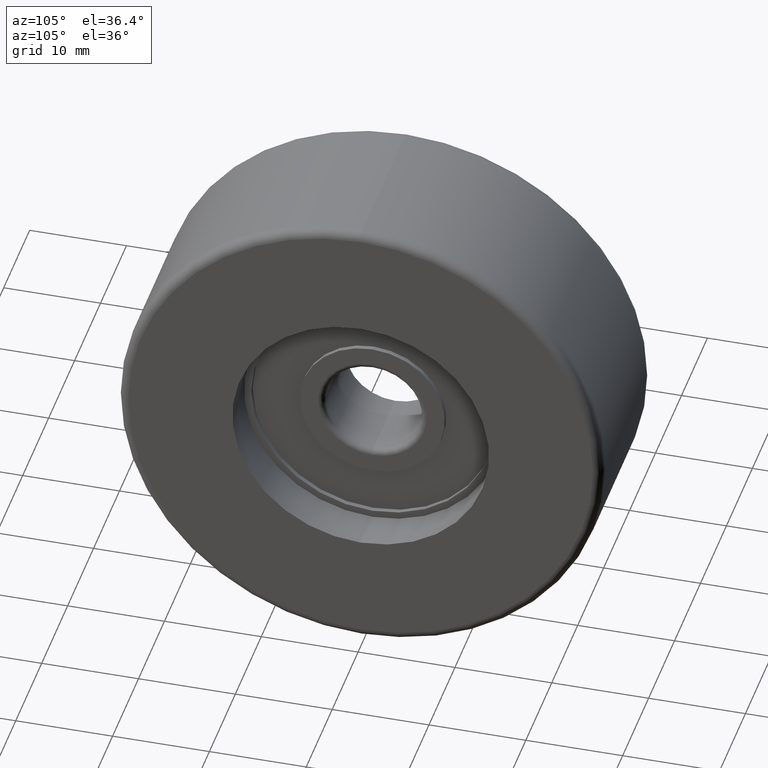
[diagram: clean part render]
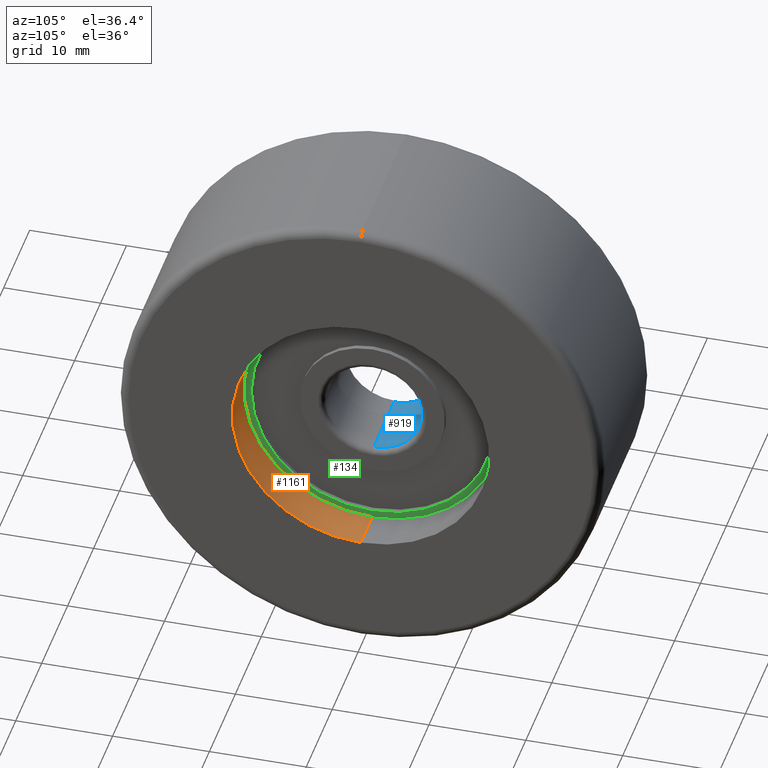
[diagram: same view with three faces highlighted in distinct colors, each labeled with its STEP entity id]
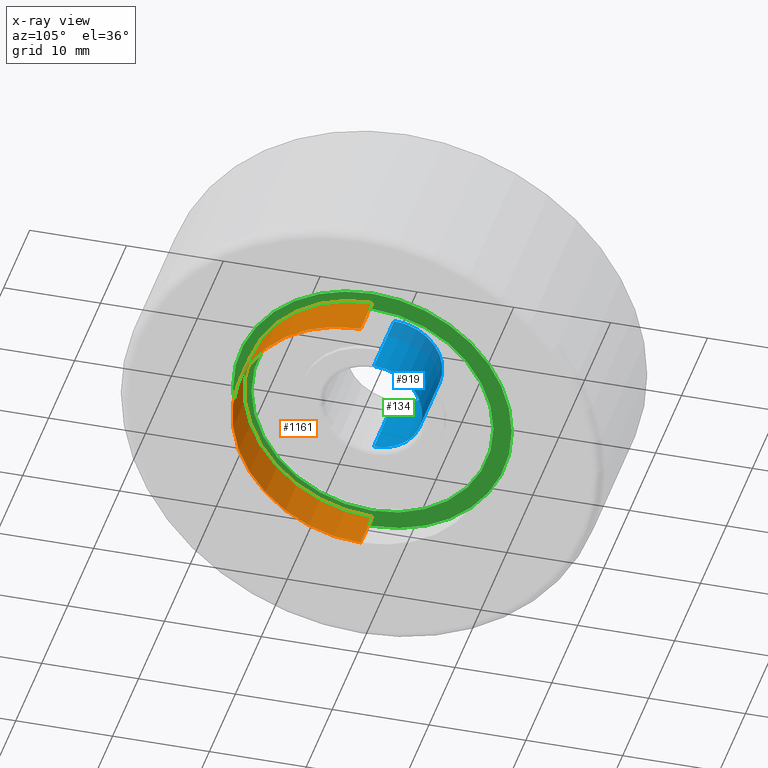
[diagram: x-ray of the same camera — body ghosted, the three highlighted faces saturated]
A machine part, auxiliary view with three faces highlighted in distinct colors.
The next image is the same camera in x-ray (body ghosted, the three faces saturated) — at least one of them is partly hidden behind the body in this view.
Their STEP definitions:

[orange] entity #1161 — the highlighted cylindrical surface (partial cylindrical patch) has radius 13.25 mm, axis along (-1, -0, -0).
#24 = LINE ( 'NONE', #541, #782 ) ;
#84 = DIRECTION ( 'NONE',  ( 0.0000000000000000000, 0.0000000000000000000, 1.000000000000000000 ) ) ;
#157 = EDGE_CURVE ( 'NONE', #693, #1368, #24, .T. ) ;
#174 = ORIENTED_EDGE ( 'NONE', *, *, #561, .F. ) ;
#182 = LINE ( 'NONE', #958, #1019 ) ;
#209 = ORIENTED_EDGE ( 'NONE', *, *, #157, .T. ) ;
#300 = DIRECTION ( 'NONE',  ( -1.000000000000000000, -0.0000000000000000000, -0.0000000000000000000 ) ) ;
#383 = ORIENTED_EDGE ( 'NONE', *, *, #415, .F. ) ;
#389 = DIRECTION ( 'NONE',  ( 0.0000000000000000000, 0.0000000000000000000, 1.000000000000000000 ) ) ;
#394 = CARTESIAN_POINT ( 'NONE',  ( 4.500000000000000000, 0.0000000000000000000, 0.0000000000000000000 ) ) ;
#415 = EDGE_CURVE ( 'NONE', #693, #1347, #1403, .T. ) ;
#450 = CARTESIAN_POINT ( 'NONE',  ( 8.999999999999998224, 0.0000000000000000000, 13.24999999999999822 ) ) ;
#485 = CIRCLE ( 'NONE', #671, 13.24999999999999822 ) ;
#510 = DIRECTION ( 'NONE',  ( -1.000000000000000000, -0.0000000000000000000, -0.0000000000000000000 ) ) ;
#520 = AXIS2_PLACEMENT_3D ( 'NONE', #1321, #767, #84 ) ;
#541 = CARTESIAN_POINT ( 'NONE',  ( -5.000000000000000000, 1.622657008870242685E-15, -13.24999999999999822 ) ) ;
#561 = EDGE_CURVE ( 'NONE', #1347, #930, #182, .T. ) ;
#564 = CARTESIAN_POINT ( 'NONE',  ( 4.500000000000000000, 1.622657008870242685E-15, -13.24999999999999822 ) ) ;
#588 = FACE_OUTER_BOUND ( 'NONE', #1115, .T. ) ;
#606 = DIRECTION ( 'NONE',  ( 0.0000000000000000000, 0.0000000000000000000, 1.000000000000000000 ) ) ;
#671 = AXIS2_PLACEMENT_3D ( 'NONE', #394, #718, #606 ) ;
#693 = VERTEX_POINT ( 'NONE', #748 ) ;
#718 = DIRECTION ( 'NONE',  ( -1.000000000000000000, -0.0000000000000000000, -0.0000000000000000000 ) ) ;
#748 = CARTESIAN_POINT ( 'NONE',  ( 8.999999999999998224, 1.622657008870242685E-15, -13.24999999999999822 ) ) ;
#754 = ORIENTED_EDGE ( 'NONE', *, *, #926, .T. ) ;
#767 = DIRECTION ( 'NONE',  ( -1.000000000000000000, -0.0000000000000000000, -0.0000000000000000000 ) ) ;
#782 = VECTOR ( 'NONE', #300, 1000.000000000000000 ) ;
#831 = DIRECTION ( 'NONE',  ( -1.000000000000000000, -0.0000000000000000000, -0.0000000000000000000 ) ) ;
#926 = EDGE_CURVE ( 'NONE', #1368, #930, #485, .T. ) ;
#930 = VERTEX_POINT ( 'NONE', #933 ) ;
#933 = CARTESIAN_POINT ( 'NONE',  ( 4.500000000000000000, 0.0000000000000000000, 13.24999999999999822 ) ) ;
#951 = AXIS2_PLACEMENT_3D ( 'NONE', #1153, #831, #389 ) ;
#958 = CARTESIAN_POINT ( 'NONE',  ( -5.000000000000000000, 0.0000000000000000000, 13.24999999999999822 ) ) ;
#1019 = VECTOR ( 'NONE', #510, 1000.000000000000000 ) ;
#1066 = CYLINDRICAL_SURFACE ( 'NONE', #520, 13.24999999999999822 ) ;
#1115 = EDGE_LOOP ( 'NONE', ( #383, #209, #754, #174 ) ) ;
#1153 = CARTESIAN_POINT ( 'NONE',  ( 8.999999999999998224, 0.0000000000000000000, 0.0000000000000000000 ) ) ;
#1161 = ADVANCED_FACE ( 'NONE', ( #588 ), #1066, .F. ) ;
#1321 = CARTESIAN_POINT ( 'NONE',  ( -5.000000000000000000, 0.0000000000000000000, 0.0000000000000000000 ) ) ;
#1347 = VERTEX_POINT ( 'NONE', #450 ) ;
#1368 = VERTEX_POINT ( 'NONE', #564 ) ;
#1403 = CIRCLE ( 'NONE', #951, 13.24999999999999822 ) ;

[blue] entity #919 — the highlighted cylindrical surface (partial cylindrical patch) has radius 5 mm, axis along (-1, -0, -0).
#42 = DIRECTION ( 'NONE',  ( 0.0000000000000000000, 0.0000000000000000000, 1.000000000000000000 ) ) ;
#111 = CIRCLE ( 'NONE', #1210, 5.000000000000000888 ) ;
#150 = CARTESIAN_POINT ( 'NONE',  ( 3.900000000000002576, 0.0000000000000000000, 5.000000000000000000 ) ) ;
#215 = AXIS2_PLACEMENT_3D ( 'NONE', #480, #1124, #42 ) ;
#220 = CARTESIAN_POINT ( 'NONE',  ( 3.900000000000002576, 0.0000000000000000000, 0.0000000000000000000 ) ) ;
#235 = CYLINDRICAL_SURFACE ( 'NONE', #215, 5.000000000000000888 ) ;
#240 = DIRECTION ( 'NONE',  ( -1.000000000000000000, -0.0000000000000000000, -0.0000000000000000000 ) ) ;
#278 = EDGE_CURVE ( 'NONE', #1014, #281, #851, .T. ) ;
#281 = VERTEX_POINT ( 'NONE', #915 ) ;
#299 = CARTESIAN_POINT ( 'NONE',  ( 3.900000000000002576, 6.490628035480971924E-16, -5.000000000000000000 ) ) ;
#346 = VECTOR ( 'NONE', #1262, 1000.000000000000000 ) ;
#427 = VERTEX_POINT ( 'NONE', #821 ) ;
#441 = DIRECTION ( 'NONE',  ( -1.000000000000000000, -0.0000000000000000000, -0.0000000000000000000 ) ) ;
#480 = CARTESIAN_POINT ( 'NONE',  ( 0.0000000000000000000, 0.0000000000000000000, 0.0000000000000000000 ) ) ;
#516 = VERTEX_POINT ( 'NONE', #299 ) ;
#543 = EDGE_LOOP ( 'NONE', ( #607, #1255, #880, #570 ) ) ;
#570 = ORIENTED_EDGE ( 'NONE', *, *, #1176, .T. ) ;
#607 = ORIENTED_EDGE ( 'NONE', *, *, #983, .F. ) ;
#664 = VECTOR ( 'NONE', #240, 1000.000000000000000 ) ;
#745 = EDGE_CURVE ( 'NONE', #1014, #516, #759, .T. ) ;
#759 = CIRCLE ( 'NONE', #1362, 5.000000000000000000 ) ;
#821 = CARTESIAN_POINT ( 'NONE',  ( -3.899999999999997247, 6.123233995736767268E-16, -5.000000000000000888 ) ) ;
#851 = LINE ( 'NONE', #922, #664 ) ;
#880 = ORIENTED_EDGE ( 'NONE', *, *, #278, .T. ) ;
#915 = CARTESIAN_POINT ( 'NONE',  ( -3.899999999999997247, 0.0000000000000000000, 5.000000000000000888 ) ) ;
#919 = ADVANCED_FACE ( 'NONE', ( #1376 ), #235, .F. ) ;
#922 = CARTESIAN_POINT ( 'NONE',  ( 0.0000000000000000000, 0.0000000000000000000, 5.000000000000000888 ) ) ;
#950 = CARTESIAN_POINT ( 'NONE',  ( 0.0000000000000000000, 6.123233995736767268E-16, -5.000000000000000888 ) ) ;
#983 = EDGE_CURVE ( 'NONE', #516, #427, #1417, .T. ) ;
#1014 = VERTEX_POINT ( 'NONE', #150 ) ;
#1100 = CARTESIAN_POINT ( 'NONE',  ( -3.899999999999997247, 0.0000000000000000000, 0.0000000000000000000 ) ) ;
#1102 = DIRECTION ( 'NONE',  ( 0.0000000000000000000, 0.0000000000000000000, 1.000000000000000000 ) ) ;
#1121 = DIRECTION ( 'NONE',  ( -1.000000000000000000, -0.0000000000000000000, -0.0000000000000000000 ) ) ;
#1124 = DIRECTION ( 'NONE',  ( -1.000000000000000000, -0.0000000000000000000, -0.0000000000000000000 ) ) ;
#1176 = EDGE_CURVE ( 'NONE', #281, #427, #111, .T. ) ;
#1210 = AXIS2_PLACEMENT_3D ( 'NONE', #1100, #441, #1212 ) ;
#1212 = DIRECTION ( 'NONE',  ( 0.0000000000000000000, 0.0000000000000000000, 1.000000000000000000 ) ) ;
#1255 = ORIENTED_EDGE ( 'NONE', *, *, #745, .F. ) ;
#1262 = DIRECTION ( 'NONE',  ( -1.000000000000000000, -0.0000000000000000000, -0.0000000000000000000 ) ) ;
#1362 = AXIS2_PLACEMENT_3D ( 'NONE', #220, #1121, #1102 ) ;
#1376 = FACE_OUTER_BOUND ( 'NONE', #543, .T. ) ;
#1417 = LINE ( 'NONE', #950, #346 ) ;

[green] entity #134 — the highlighted planar face has unit normal (-1, 0, -0).
#1 = CIRCLE ( 'NONE', #192, 12.50000000000000711 ) ;
#20 = CARTESIAN_POINT ( 'NONE',  ( 4.500000000000000000, 1.763491390772189249E-15, -14.40000000000000391 ) ) ;
#87 = DIRECTION ( 'NONE',  ( -1.000000000000000000, -0.0000000000000000000, -0.0000000000000000000 ) ) ;
#129 = ORIENTED_EDGE ( 'NONE', *, *, #956, .F. ) ;
#134 = ADVANCED_FACE ( 'NONE', ( #1179, #1144 ), #975, .F. ) ;
#140 = DIRECTION ( 'NONE',  ( -1.000000000000000000, -0.0000000000000000000, -0.0000000000000000000 ) ) ;
#146 = VERTEX_POINT ( 'NONE', #524 ) ;
#156 = CIRCLE ( 'NONE', #739, 12.50000000000000711 ) ;
#190 = CARTESIAN_POINT ( 'NONE',  ( 4.500000000000000888, 12.50000000000000711, 0.0000000000000000000 ) ) ;
#192 = AXIS2_PLACEMENT_3D ( 'NONE', #378, #692, #464 ) ;
#196 = EDGE_LOOP ( 'NONE', ( #129, #1305 ) ) ;
#270 = ORIENTED_EDGE ( 'NONE', *, *, #837, .T. ) ;
#378 = CARTESIAN_POINT ( 'NONE',  ( 4.500000000000001776, 0.0000000000000000000, 0.0000000000000000000 ) ) ;
#429 = VERTEX_POINT ( 'NONE', #20 ) ;
#464 = DIRECTION ( 'NONE',  ( 0.0000000000000000000, 0.0000000000000000000, 1.000000000000000000 ) ) ;
#479 = VERTEX_POINT ( 'NONE', #1071 ) ;
#489 = AXIS2_PLACEMENT_3D ( 'NONE', #190, #1193, #1180 ) ;
#518 = VERTEX_POINT ( 'NONE', #1162 ) ;
#524 = CARTESIAN_POINT ( 'NONE',  ( 4.500000000000001776, 0.0000000000000000000, 12.50000000000000711 ) ) ;
#692 = DIRECTION ( 'NONE',  ( -1.000000000000000000, -0.0000000000000000000, -0.0000000000000000000 ) ) ;
#739 = AXIS2_PLACEMENT_3D ( 'NONE', #1444, #87, #772 ) ;
#772 = DIRECTION ( 'NONE',  ( 0.0000000000000000000, 0.0000000000000000000, 1.000000000000000000 ) ) ;
#781 = DIRECTION ( 'NONE',  ( -1.000000000000000000, -0.0000000000000000000, -0.0000000000000000000 ) ) ;
#796 = DIRECTION ( 'NONE',  ( 0.0000000000000000000, 0.0000000000000000000, 1.000000000000000000 ) ) ;
#837 = EDGE_CURVE ( 'NONE', #146, #518, #1, .T. ) ;
#934 = EDGE_LOOP ( 'NONE', ( #270, #1204 ) ) ;
#956 = EDGE_CURVE ( 'NONE', #479, #429, #1189, .T. ) ;
#975 = PLANE ( 'NONE',  #489 ) ;
#1056 = DIRECTION ( 'NONE',  ( 0.0000000000000000000, 0.0000000000000000000, 1.000000000000000000 ) ) ;
#1071 = CARTESIAN_POINT ( 'NONE',  ( 4.500000000000000000, 0.0000000000000000000, 14.40000000000000391 ) ) ;
#1087 = EDGE_CURVE ( 'NONE', #518, #146, #156, .T. ) ;
#1144 = FACE_BOUND ( 'NONE', #934, .T. ) ;
#1159 = AXIS2_PLACEMENT_3D ( 'NONE', #1346, #781, #796 ) ;
#1162 = CARTESIAN_POINT ( 'NONE',  ( 4.500000000000001776, 1.530808498934192310E-15, -12.50000000000000711 ) ) ;
#1179 = FACE_OUTER_BOUND ( 'NONE', #196, .T. ) ;
#1180 = DIRECTION ( 'NONE',  ( -0.0000000000000000000, 0.0000000000000000000, 1.000000000000000000 ) ) ;
#1189 = CIRCLE ( 'NONE', #1336, 14.40000000000000391 ) ;
#1193 = DIRECTION ( 'NONE',  ( -1.000000000000000000, 0.0000000000000000000, -0.0000000000000000000 ) ) ;
#1204 = ORIENTED_EDGE ( 'NONE', *, *, #1087, .T. ) ;
#1228 = EDGE_CURVE ( 'NONE', #429, #479, #1348, .T. ) ;
#1305 = ORIENTED_EDGE ( 'NONE', *, *, #1228, .F. ) ;
#1336 = AXIS2_PLACEMENT_3D ( 'NONE', #1393, #140, #1056 ) ;
#1346 = CARTESIAN_POINT ( 'NONE',  ( 4.500000000000000000, 0.0000000000000000000, 0.0000000000000000000 ) ) ;
#1348 = CIRCLE ( 'NONE', #1159, 14.40000000000000391 ) ;
#1393 = CARTESIAN_POINT ( 'NONE',  ( 4.500000000000000000, 0.0000000000000000000, 0.0000000000000000000 ) ) ;
#1444 = CARTESIAN_POINT ( 'NONE',  ( 4.500000000000001776, 0.0000000000000000000, 0.0000000000000000000 ) ) ;